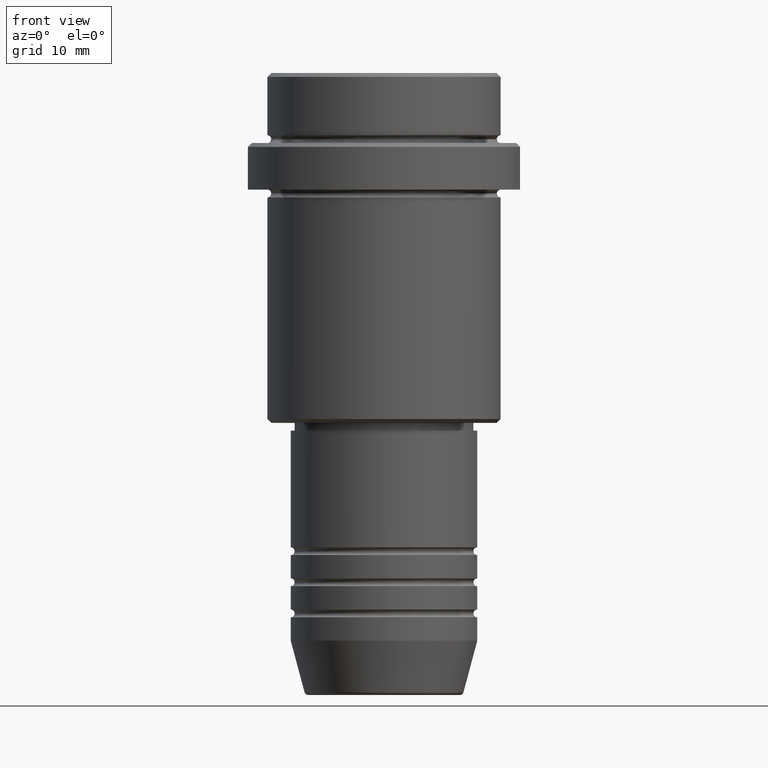
[diagram: clean part render]
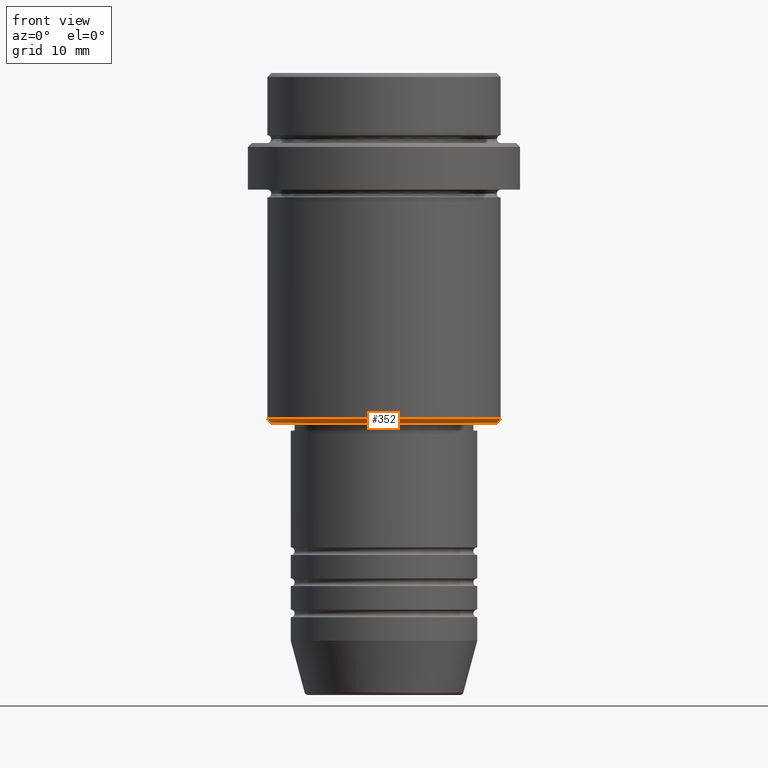
[diagram: same view with one face highlighted and labeled with its STEP entity id]
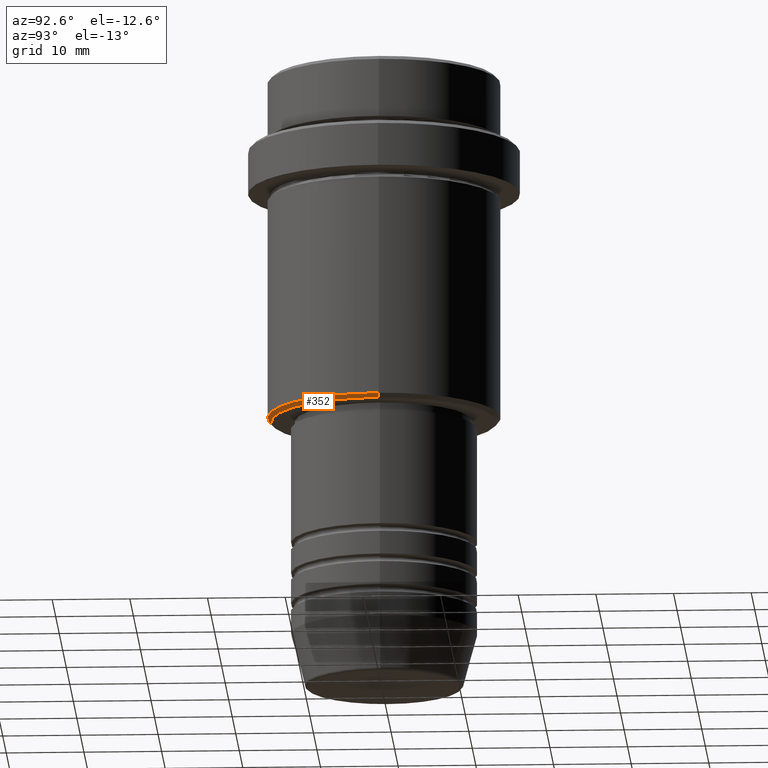
[diagram: same view with one face highlighted and labeled with its STEP entity id]
A machine part, front view. The second image highlights one B-rep face of the part: STEP entity #352.
A second angle (auxiliary view) of the same face is appended — the face is thin or edge-on in the first view.
In plain terms, the highlighted conical surface has half-angle 45 deg.
Its self-contained STEP definition (entity closure, byte-faithful):
#126 = CIRCLE ( 'NONE', #614, 14.49999999999998401 ) ;
#175 = LINE ( 'NONE', #716, #637 ) ;
#189 = DIRECTION ( 'NONE',  ( -0.7071067811865487940, 8.659560562354948882E-17, 0.7071067811865463515 ) ) ;
#190 = EDGE_CURVE ( 'NONE', #1326, #433, #126, .T. ) ;
#205 = DIRECTION ( 'NONE',  ( 0.000000000000000000, 0.000000000000000000, -1.000000000000000000 ) ) ;
#249 = CIRCLE ( 'NONE', #621, 15.00000000000000000 ) ;
#288 = DIRECTION ( 'NONE',  ( 1.000000000000000000, 0.000000000000000000, 0.000000000000000000 ) ) ;
#348 = ORIENTED_EDGE ( 'NONE', *, *, #1348, .F. ) ;
#352 = ADVANCED_FACE ( 'NONE', ( #398 ), #845, .T. ) ;
#398 = FACE_OUTER_BOUND ( 'NONE', #909, .T. ) ;
#429 = LINE ( 'NONE', #1089, #1012 ) ;
#433 = VERTEX_POINT ( 'NONE', #712 ) ;
#587 = ORIENTED_EDGE ( 'NONE', *, *, #813, .T. ) ;
#606 = DIRECTION ( 'NONE',  ( 0.7071067811865487940, 0.000000000000000000, 0.7071067811865463515 ) ) ;
#614 = AXIS2_PLACEMENT_3D ( 'NONE', #1193, #205, #1117 ) ;
#621 = AXIS2_PLACEMENT_3D ( 'NONE', #697, #925, #811 ) ;
#637 = VECTOR ( 'NONE', #606, 1000.000000000000000 ) ;
#697 = CARTESIAN_POINT ( 'NONE',  ( 0.000000000000000000, 0.000000000000000000, -44.49999999999998579 ) ) ;
#702 = CARTESIAN_POINT ( 'NONE',  ( 0.000000000000000000, 0.000000000000000000, -44.49999999999998579 ) ) ;
#712 = CARTESIAN_POINT ( 'NONE',  ( -14.49999999999998401, 1.806354028742345013E-15, -45.00000000000000000 ) ) ;
#716 = CARTESIAN_POINT ( 'NONE',  ( 15.00000000000000000, 0.000000000000000000, -44.49999999999998579 ) ) ;
#723 = ORIENTED_EDGE ( 'NONE', *, *, #190, .F. ) ;
#753 = AXIS2_PLACEMENT_3D ( 'NONE', #702, #808, #288 ) ;
#808 = DIRECTION ( 'NONE',  ( -0.000000000000000000, -0.000000000000000000, 1.000000000000000000 ) ) ;
#811 = DIRECTION ( 'NONE',  ( -1.000000000000000000, 0.000000000000000000, 0.000000000000000000 ) ) ;
#813 = EDGE_CURVE ( 'NONE', #1326, #1242, #175, .T. ) ;
#845 = CONICAL_SURFACE ( 'NONE', #753, 15.00000000000000000, 0.7853981633974500554 ) ;
#909 = EDGE_LOOP ( 'NONE', ( #1112, #723, #587, #348 ) ) ;
#925 = DIRECTION ( 'NONE',  ( -0.000000000000000000, -0.000000000000000000, 1.000000000000000000 ) ) ;
#961 = EDGE_CURVE ( 'NONE', #433, #1274, #429, .T. ) ;
#1012 = VECTOR ( 'NONE', #189, 1000.000000000000000 ) ;
#1089 = CARTESIAN_POINT ( 'NONE',  ( -15.00000000000000000, 1.836970198721029589E-15, -44.49999999999998579 ) ) ;
#1112 = ORIENTED_EDGE ( 'NONE', *, *, #961, .F. ) ;
#1117 = DIRECTION ( 'NONE',  ( -1.000000000000000000, 0.000000000000000000, 0.000000000000000000 ) ) ;
#1155 = CARTESIAN_POINT ( 'NONE',  ( -15.00000000000000000, 1.836970198721029589E-15, -44.49999999999998579 ) ) ;
#1193 = CARTESIAN_POINT ( 'NONE',  ( 0.000000000000000000, 0.000000000000000000, -45.00000000000000000 ) ) ;
#1242 = VERTEX_POINT ( 'NONE', #1334 ) ;
#1274 = VERTEX_POINT ( 'NONE', #1155 ) ;
#1326 = VERTEX_POINT ( 'NONE', #1347 ) ;
#1334 = CARTESIAN_POINT ( 'NONE',  ( 15.00000000000000000, 0.000000000000000000, -44.49999999999998579 ) ) ;
#1347 = CARTESIAN_POINT ( 'NONE',  ( 14.49999999999998401, 0.000000000000000000, -45.00000000000000000 ) ) ;
#1348 = EDGE_CURVE ( 'NONE', #1274, #1242, #249, .T. ) ;